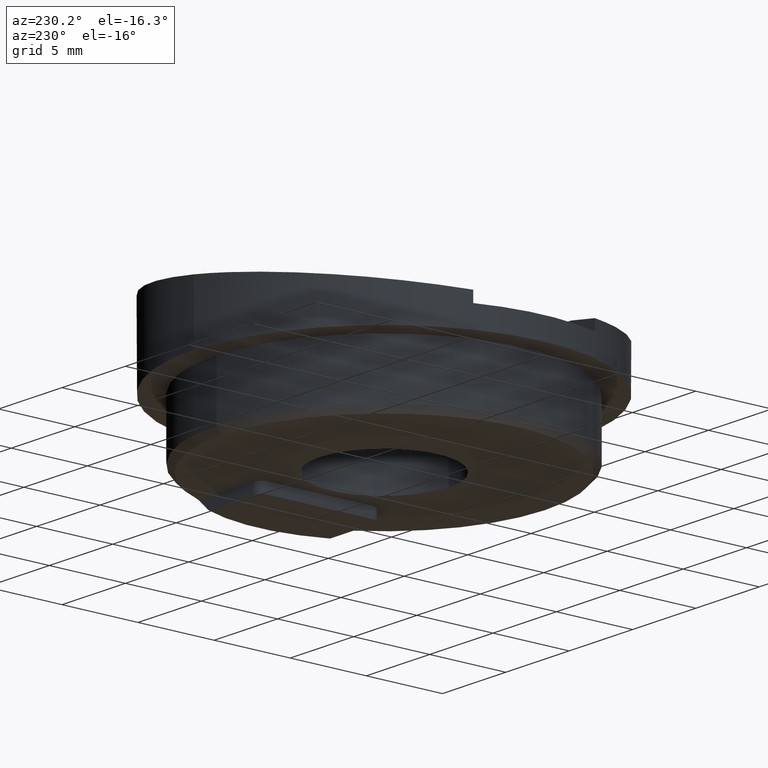
[diagram: clean part render]
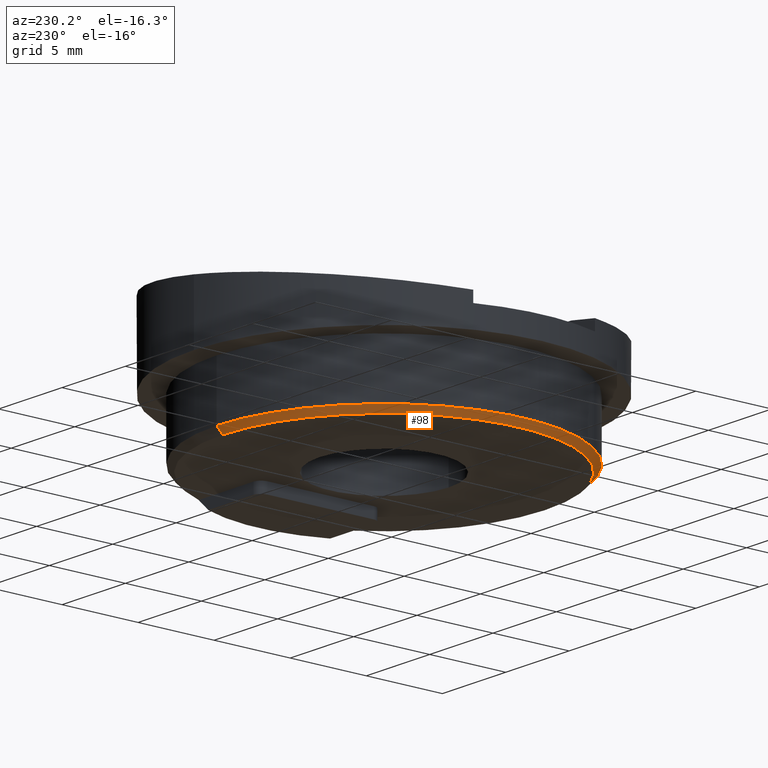
[diagram: same view with one face highlighted and labeled with its STEP entity id]
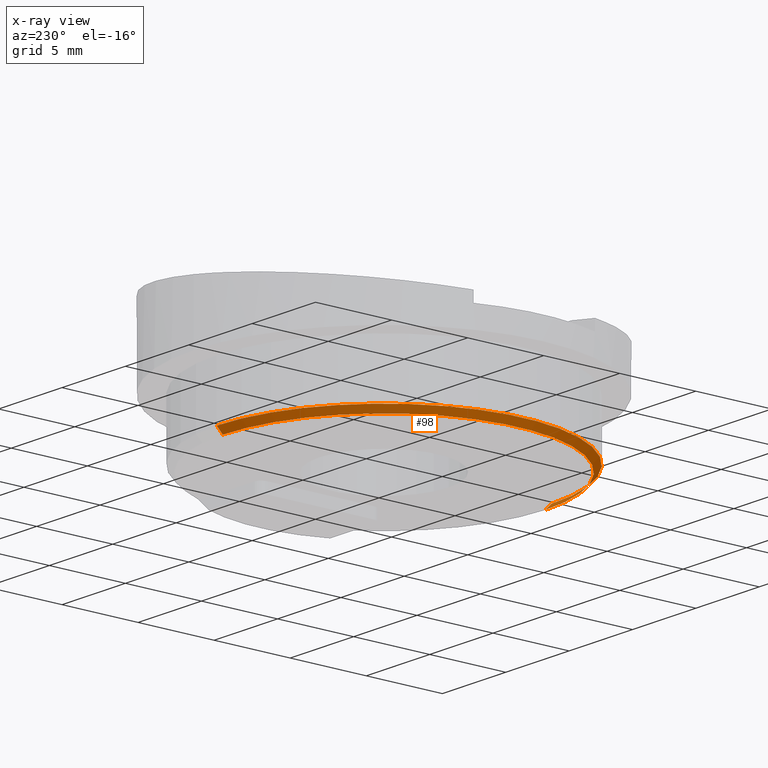
[diagram: x-ray of the same camera — body ghosted, the highlighted face saturated]
A machine part, auxiliary view. The second image highlights one B-rep face of the part: STEP entity #98.
The next image is the same camera in x-ray: the body ghosted, the highlighted face saturated — about 0% of this face is hidden behind the body in this view.
In plain terms, the highlighted conical surface has half-angle 45 deg.
Its self-contained STEP definition (entity closure, byte-faithful):
#58 = FACE_OUTER_BOUND ( 'NONE', #1037, .T. ) ;
#66 = ORIENTED_EDGE ( 'NONE', *, *, #930, .T. ) ;
#70 = VECTOR ( 'NONE', #381, 1000.000000000000100 ) ;
#79 = CARTESIAN_POINT ( 'NONE',  ( 1.306550874272303600E-031, 1.298125607096194000E-015, 10.60000000000000300 ) ) ;
#98 = ADVANCED_FACE ( 'NONE', ( #58 ), #231, .T. ) ;
#147 = CARTESIAN_POINT ( 'NONE',  ( -1.306550874272302100E-031, 4.899565778521160400E-032, -10.60000000000000300 ) ) ;
#231 = CONICAL_SURFACE ( 'NONE', #802, 10.60000000000000300, 0.7853981633974433900 ) ;
#329 = CARTESIAN_POINT ( 'NONE',  ( 0.3999999999999975800, 1.347111479062083700E-015, -11.00000000000000000 ) ) ;
#377 = CARTESIAN_POINT ( 'NONE',  ( 0.0000000000000000000, 4.899565778521160400E-032, -10.60000000000000300 ) ) ;
#381 = DIRECTION ( 'NONE',  ( 0.7071067811865507900, -7.517346443190816400E-032, -0.7071067811865442400 ) ) ;
#404 = ORIENTED_EDGE ( 'NONE', *, *, #928, .F. ) ;
#416 = CARTESIAN_POINT ( 'NONE',  ( 0.3999999999999975800, 0.0000000000000000000, -2.958228394578794300E-028 ) ) ;
#418 = DIRECTION ( 'NONE',  ( -1.000000000000000000, 1.109335647967048500E-031, 1.232595164407831800E-032 ) ) ;
#419 = DIRECTION ( 'NONE',  ( 0.0000000000000000000, -4.622231866529396200E-033, 1.000000000000000000 ) ) ;
#441 = CARTESIAN_POINT ( 'NONE',  ( 1.440057011490674600E-046, 1.298125607096194000E-015, 10.60000000000000300 ) ) ;
#457 = ORIENTED_EDGE ( 'NONE', *, *, #938, .T. ) ;
#487 = VERTEX_POINT ( 'NONE', #329 ) ;
#494 = DIRECTION ( 'NONE',  ( 0.7071067811865507900, 8.659560562354879900E-017, 0.7071067811865442400 ) ) ;
#495 = VECTOR ( 'NONE', #494, 1000.000000000000100 ) ;
#519 = DIRECTION ( 'NONE',  ( 0.0000000000000000000, 4.622231866529395500E-033, -1.000000000000000000 ) ) ;
#536 = DIRECTION ( 'NONE',  ( 1.000000000000000000, -1.109335647967048500E-031, -1.232595164407831800E-032 ) ) ;
#551 = CARTESIAN_POINT ( 'NONE',  ( 0.0000000000000000000, 0.0000000000000000000, 0.0000000000000000000 ) ) ;
#556 = AXIS2_PLACEMENT_3D ( 'NONE', #416, #418, #419 ) ;
#561 = CIRCLE ( 'NONE', #556, 11.00000000000000000 ) ;
#562 = AXIS2_PLACEMENT_3D ( 'NONE', #551, #536, #519 ) ;
#638 = CARTESIAN_POINT ( 'NONE',  ( 0.3999999999999975800, -5.084455053182335500E-032, 11.00000000000000000 ) ) ;
#688 = VERTEX_POINT ( 'NONE', #79 ) ;
#745 = ORIENTED_EDGE ( 'NONE', *, *, #929, .T. ) ;
#758 = VERTEX_POINT ( 'NONE', #147 ) ;
#767 = VERTEX_POINT ( 'NONE', #638 ) ;
#801 = CIRCLE ( 'NONE', #562, 10.60000000000000500 ) ;
#802 = AXIS2_PLACEMENT_3D ( 'NONE', #854, #842, #853 ) ;
#842 = DIRECTION ( 'NONE',  ( 1.000000000000000000, -1.109335647967048500E-031, -1.232595164407831800E-032 ) ) ;
#850 = LINE ( 'NONE', #377, #70 ) ;
#853 = DIRECTION ( 'NONE',  ( 0.0000000000000000000, 4.622231866529395500E-033, -1.000000000000000000 ) ) ;
#854 = CARTESIAN_POINT ( 'NONE',  ( 0.0000000000000000000, 0.0000000000000000000, 0.0000000000000000000 ) ) ;
#928 = EDGE_CURVE ( 'NONE', #758, #487, #850, .T. ) ;
#929 = EDGE_CURVE ( 'NONE', #758, #688, #801, .T. ) ;
#930 = EDGE_CURVE ( 'NONE', #767, #487, #561, .T. ) ;
#938 = EDGE_CURVE ( 'NONE', #688, #767, #945, .T. ) ;
#945 = LINE ( 'NONE', #441, #495 ) ;
#1037 = EDGE_LOOP ( 'NONE', ( #745, #457, #66, #404 ) ) ;